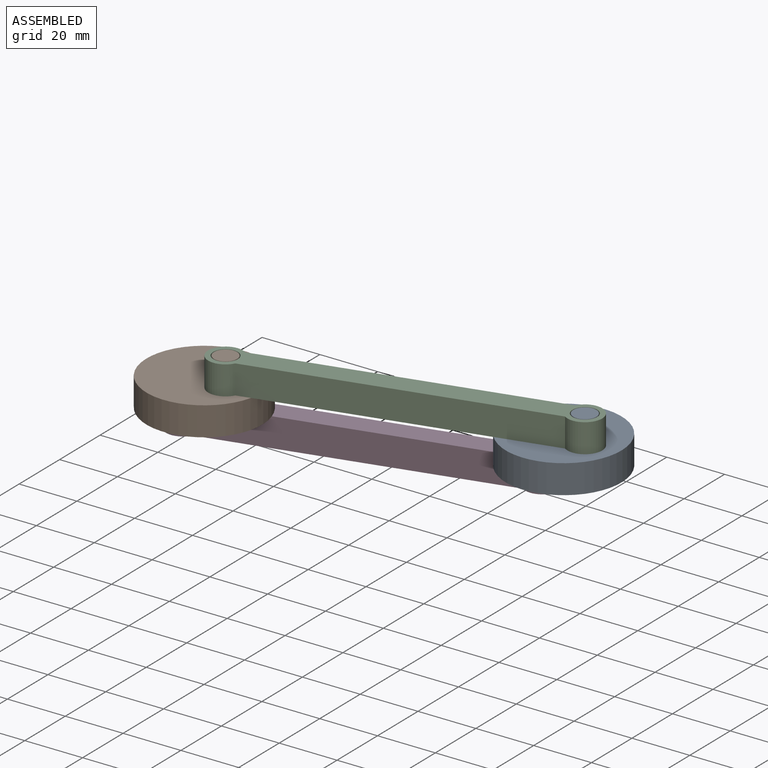
[diagram: assembled view]
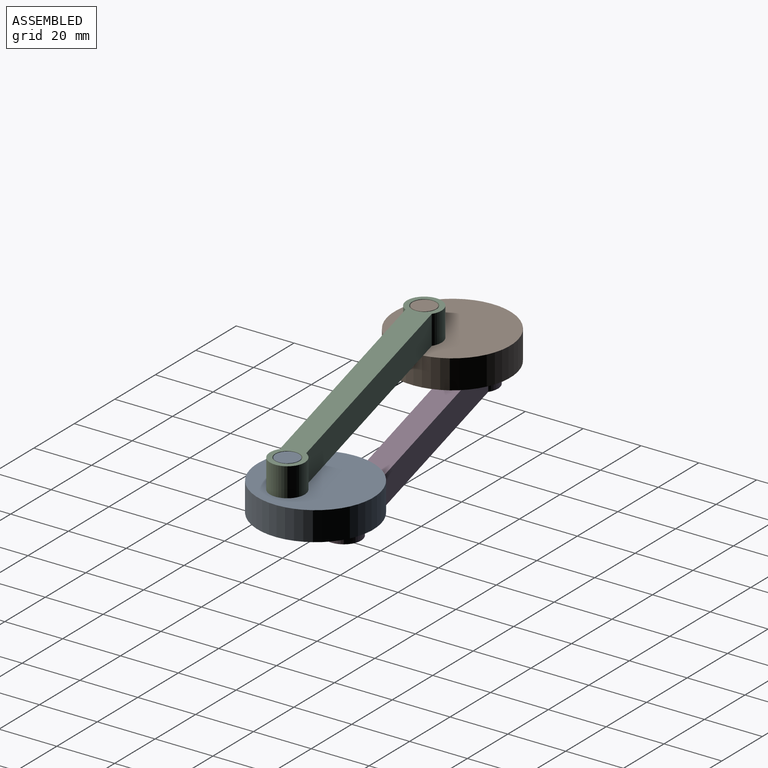
[diagram: assembled view, second angle]
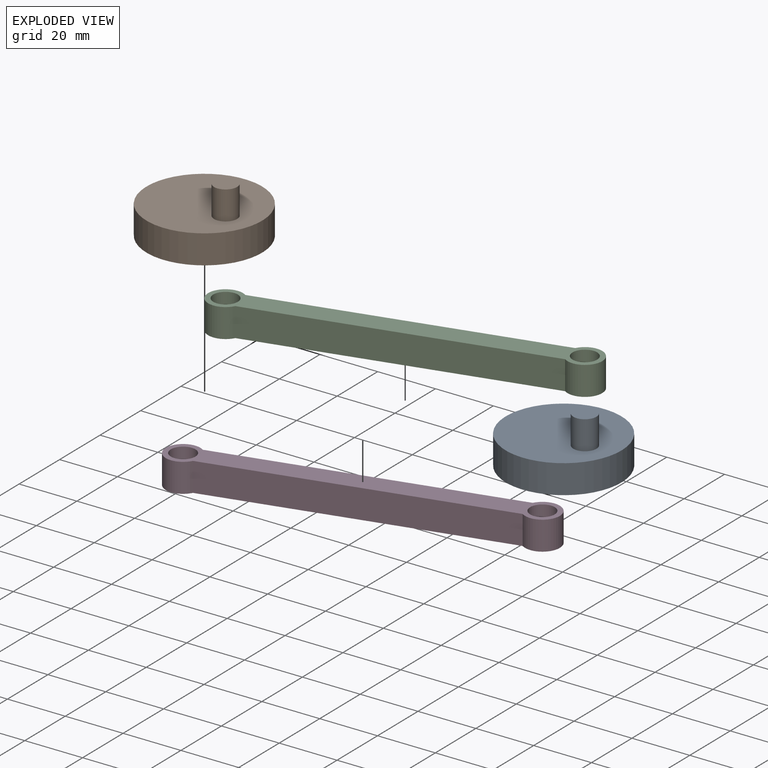
[diagram: exploded view]
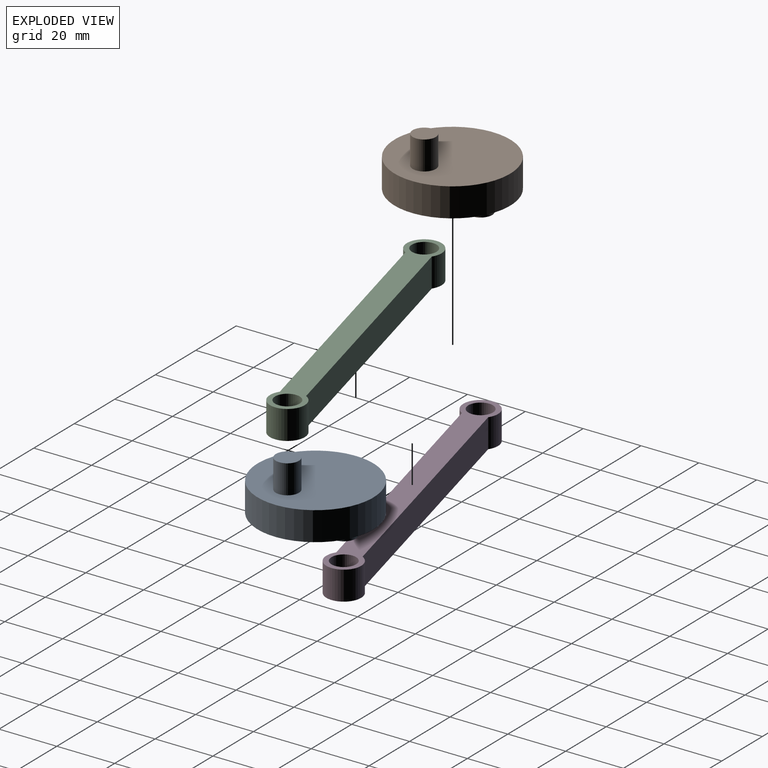
[diagram: exploded view, second angle]
ASSEMBLY  parts=4 mates=4
PART A: 7 faces, bbox 40x40x30 mm
  f0: cylinder r=20mm len=40mm, axis (0,0,-1), area 1256.6mm2, adj f1,f2
  f1: plane 40x40mm, normal (0,0,1), area 1206.4mm2, adj f0,f3
  f2: plane 40x40mm, normal (0,0,-1), area 1206.4mm2, adj f0,f5
  f3: cylinder r=4mm len=10mm, axis (0,0,-1), area 251.3mm2, adj f1,f4
  f4: plane 8x8mm, normal (0,0,1), area 50.3mm2, adj f3
  f5: cylinder r=4mm len=10mm, axis (0,0,1), area 251.3mm2, adj f2,f6
  f6: plane 8x8mm, normal (0,0,-1), area 50.3mm2, adj f5
PART B: same geometry as A
PART C: 8 faces, bbox 120.9x12x10 mm
  f0: cylinder r=6mm len=12mm, axis (0,0,-1), area 289.4mm2, adj f1,f2,f4,f5
  f1: plane 120.94x12mm, normal (0,0,1), area 895.9mm2, adj f0,f3,f4,f5,f6,f7
  f2: plane 120.94x12mm, normal (0,0,-1), area 895.9mm2, adj f0,f3,f4,f5,f6,f7
  f3: cylinder r=4.25mm len=10mm, axis (0,0,1), area 267mm2, adj f1,f2
  f4: plane 100x10mm, normal (0,-1,0), area 1000mm2, adj f0,f1,f2,f6
  f5: plane 100x10mm, normal (0,1,0), area 1000mm2, adj f0,f1,f2,f6
  f6: cylinder r=6mm len=12mm, axis (0,0,-1), area 289.4mm2, adj f1,f2,f4,f5
  f7: cylinder r=4.25mm len=10mm, axis (0,0,1), area 267mm2, adj f1,f2
PART D: same geometry as C
PLACE A rot(axis=(0,0,1),72deg) t=(-19.42,16.1,-18.67)mm
PLACE B rot(axis=(0,0,1),72deg) t=(-125.06,-10.53,-18.67)mm
PLACE C rot(axis=(0,0,-1),165.9deg) t=(-54.76,-31.83,-8.67)mm
PLACE D rot(axis=(0,0,-1),165.9deg) t=(-73.78,-25.63,-28.67)mm
MATE revolute D.f6 <-> B.f5  axis (0,0,-1) through (-146.47,-43.96,-28.67)mm
MATE revolute B.f3 <-> C.f6  axis (0,0,1) through (-127.46,-50.15,1.33)mm
MATE revolute D.f0 <-> A.f5  axis (0,0,-1) through (-40.83,-17.33,-28.67)mm
MATE revolute A.f3 <-> C.f0  axis (0,0,1) through (-21.82,-23.53,1.33)mm
